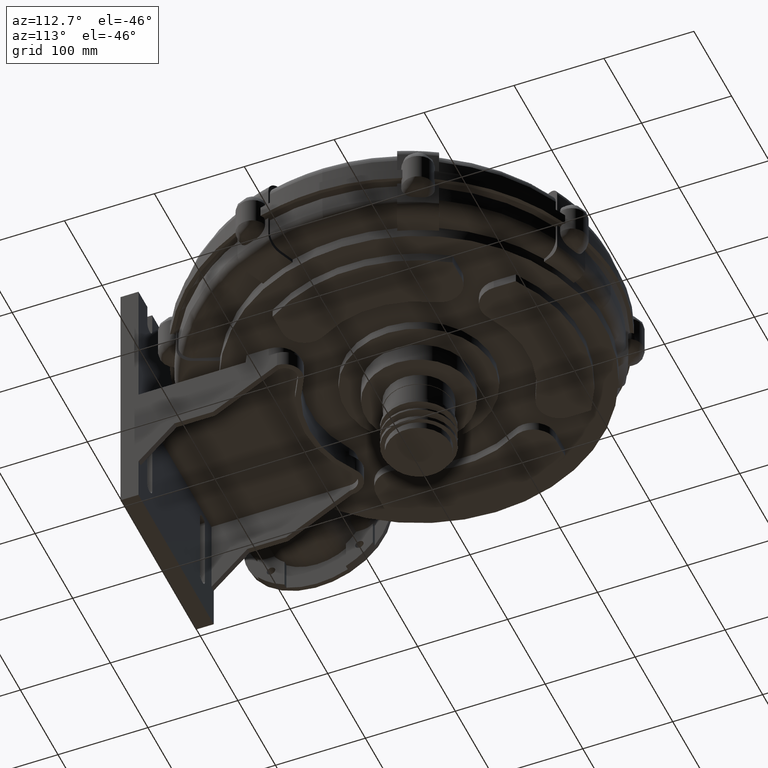
[diagram: clean part render]
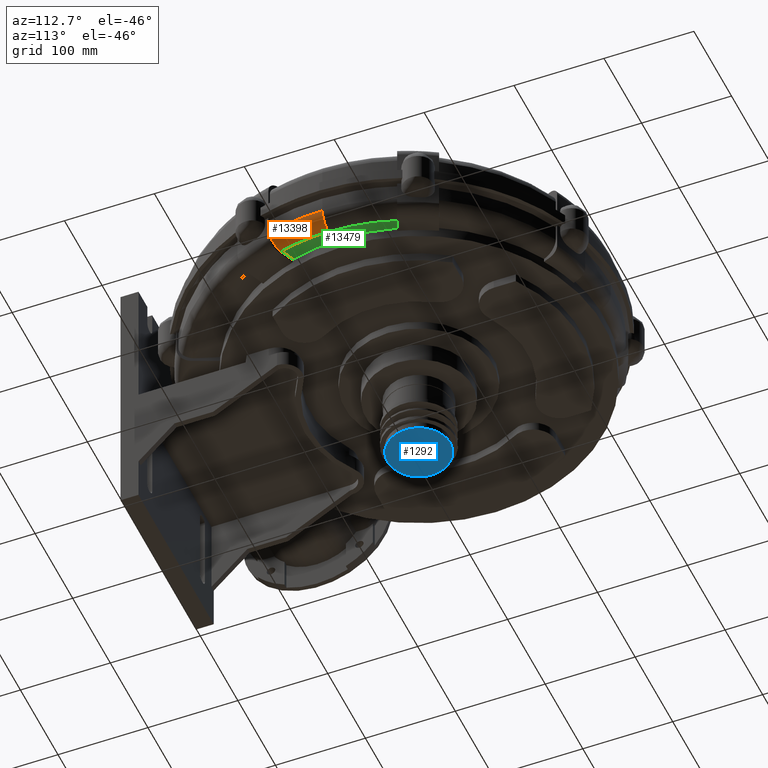
[diagram: same view with three faces highlighted in distinct colors, each labeled with its STEP entity id]
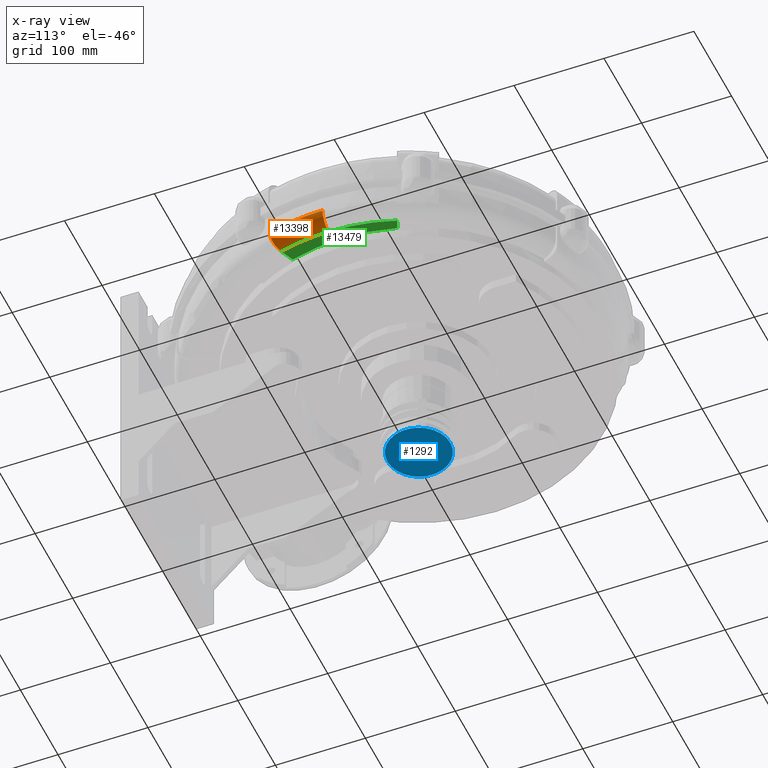
[diagram: x-ray of the same camera — body ghosted, the three highlighted faces saturated]
A machine part, auxiliary view with three faces highlighted in distinct colors.
The next image is the same camera in x-ray (body ghosted, the three faces saturated) — at least one of them is partly hidden behind the body in this view.
Their STEP definitions:

[orange] entity #13398 — the highlighted toroidal blend (fillet) surface has major radius 228 mm and minor (blend) radius 16 mm.
#12999=CARTESIAN_POINT('',(212.11902789896988,-79.591145886863643,40.499999999999432));
#13000=VERTEX_POINT('',#12999);
#13007=CARTESIAN_POINT('',(227.05029304419864,-85.775878413406048,56.499999999999417));
#13008=VERTEX_POINT('',#13007);
#13009=CARTESIAN_POINT('',(227.05029304419864,-85.775878413406076,56.499999999999417));
#13010=CARTESIAN_POINT('',(227.05029304419864,-85.775878413406076,55.515775986251569));
#13011=CARTESIAN_POINT('',(226.9600018764294,-85.738478587153566,54.440978863457019));
#13012=CARTESIAN_POINT('',(226.57093168077864,-85.577320435399855,52.336504503144603));
#13013=CARTESIAN_POINT('',(226.2721712207406,-85.453569800951271,51.30682324392636));
#13014=CARTESIAN_POINT('',(225.57131492685724,-85.163265618750216,49.485287808162468));
#13015=CARTESIAN_POINT('',(225.10389940072312,-84.969655768561722,48.526124756590647));
#13016=CARTESIAN_POINT('',(223.99215132138107,-84.509154636156012,46.736440882968601));
#13017=CARTESIAN_POINT('',(223.34785888794343,-84.242279972091751,45.905890862984506));
#13018=CARTESIAN_POINT('',(222.04791750127708,-83.70382661944447,44.506990625498553));
#13019=CARTESIAN_POINT('',(221.27171378615844,-83.382312513477984,43.810641700011473));
#13020=CARTESIAN_POINT('',(219.60118906435756,-82.690358517428507,42.610350031243421));
#13021=CARTESIAN_POINT('',(218.70689821268047,-82.319931117957665,42.106358119296658));
#13022=CARTESIAN_POINT('',(217.00158551015835,-81.613567468485897,41.346233446043101));
#13023=CARTESIAN_POINT('',(216.03291579018401,-81.212331333012372,41.021091824895421));
#13024=CARTESIAN_POINT('',(214.05406103166041,-80.392662854065378,40.597991566215192));
#13025=CARTESIAN_POINT('',(213.04388200267852,-79.974232999836175,40.499999999999432));
#13026=CARTESIAN_POINT('',(212.11902789896988,-79.591145886863657,40.499999999999432));
#13027=B_SPLINE_CURVE_WITH_KNOTS('',3,(#13009,#13010,#13011,#13012,#13013,#13014,#13015,#13016,#13017,#13018,#13019,#13020,#13021,#13022,#13023,#13024,#13025,#13026),.UNSPECIFIED.,.F.,.U.,(4,2,2,2,2,2,2,2,4),(0.0,0.295267204124357,0.590534408248714,0.887223339827045,1.183912271405375,1.482457020541188,1.781001769677001,2.081318230155782,2.381634690634563),.UNSPECIFIED.);
#13028=EDGE_CURVE('',#13008,#13000,#13027,.T.);
#13322=CARTESIAN_POINT('',(234.9999999999996,-23.999999999999964,56.499999999999382));
#13323=VERTEX_POINT('',#13322);
#13324=CARTESIAN_POINT('',(-9.00000000000002,-23.999999999999972,56.499999999999574));
#13325=DIRECTION('',(-6.270793E-016,1.680254E-016,-1.0));
#13326=DIRECTION('',(0.965925826289068,-0.258819045102521,-6.492003E-016));
#13327=AXIS2_PLACEMENT_3D('',#13324,#13325,#13326);
#13328=CIRCLE('',#13327,244.0);
#13329=EDGE_CURVE('',#13323,#13008,#13328,.T.);
#13373=CARTESIAN_POINT('',(-9.00000000000002,-23.999999999999972,56.499999999999574));
#13374=DIRECTION('',(8.099377E-016,5.144112E-016,1.0));
#13375=DIRECTION('',(1.0,0.0,0.0));
#13376=AXIS2_PLACEMENT_3D('',#13373,#13374,#13375);
#13377=TOROIDAL_SURFACE('',#13376,227.99999999999997,16.0);
#13378=ORIENTED_EDGE('',*,*,#13028,.T.);
#13379=CARTESIAN_POINT('',(218.99999999999994,-23.999999999999972,40.499999999999396));
#13380=VERTEX_POINT('',#13379);
#13381=CARTESIAN_POINT('',(-9.000000000000034,-23.999999999999982,40.499999999999581));
#13382=DIRECTION('',(6.270793E-016,-1.680254E-016,1.0));
#13383=DIRECTION('',(0.965925826289068,-0.258819045102521,-6.492003E-016));
#13384=AXIS2_PLACEMENT_3D('',#13381,#13382,#13383);
#13385=CIRCLE('',#13384,227.99999999999997);
#13386=EDGE_CURVE('',#13000,#13380,#13385,.T.);
#13387=ORIENTED_EDGE('',*,*,#13386,.T.);
#13388=CARTESIAN_POINT('',(218.99999999999994,-23.999999999999964,56.499999999999403));
#13389=DIRECTION('',(0.0,-1.0,0.0));
#13390=DIRECTION('',(0.0,0.0,-1.0));
#13391=AXIS2_PLACEMENT_3D('',#13388,#13389,#13390);
#13392=CIRCLE('',#13391,16.0);
#13393=EDGE_CURVE('',#13380,#13323,#13392,.T.);
#13394=ORIENTED_EDGE('',*,*,#13393,.T.);
#13395=ORIENTED_EDGE('',*,*,#13329,.T.);
#13396=EDGE_LOOP('',(#13378,#13387,#13394,#13395));
#13397=FACE_OUTER_BOUND('',#13396,.T.);
#13398=ADVANCED_FACE('',(#13397),#13377,.T.);

[blue] entity #1292 — the highlighted planar face has unit normal (0, 0, -1).
#1269=CARTESIAN_POINT('',(-7.438494E-014,19.999999999999972,-79.500000000000099));
#1270=VERTEX_POINT('',#1269);
#1271=CARTESIAN_POINT('',(-6.106227E-014,-15.000000000000032,-79.500000000000057));
#1272=DIRECTION('',(0.0,0.0,-1.0));
#1273=DIRECTION('',(0.0,1.0,0.0));
#1274=AXIS2_PLACEMENT_3D('',#1271,#1272,#1273);
#1275=CIRCLE('',#1274,35.000000000000007);
#1276=EDGE_CURVE('',#1270,#1270,#1275,.T.);
#1284=CARTESIAN_POINT('',(-6.772360E-014,2.499999999999973,-79.500000000000099));
#1285=DIRECTION('',(0.0,0.0,-1.0));
#1286=DIRECTION('',(-1.0,0.0,0.0));
#1287=AXIS2_PLACEMENT_3D('',#1284,#1285,#1286);
#1288=PLANE('',#1287);
#1289=ORIENTED_EDGE('',*,*,#1276,.T.);
#1290=EDGE_LOOP('',(#1289));
#1291=FACE_OUTER_BOUND('',#1290,.T.);
#1292=ADVANCED_FACE('',(#1291),#1288,.T.);

[green] entity #13479 — the highlighted planar face has unit normal (0, 0, 1).
#10009=CARTESIAN_POINT('',(196.57849996582726,43.154048450518374,40.499999999999375));
#10010=VERTEX_POINT('',#10009);
#10017=CARTESIAN_POINT('',(196.57849996582735,-73.154048450518104,40.499999999999439));
#10018=VERTEX_POINT('',#10017);
#10019=CARTESIAN_POINT('',(-3.219647E-014,-14.99999999999998,40.499999999999574));
#10020=DIRECTION('',(0.0,0.0,1.0));
#10021=DIRECTION('',(-1.0,0.0,0.0));
#10022=AXIS2_PLACEMENT_3D('',#10019,#10020,#10021);
#10023=CIRCLE('',#10022,205.0);
#10024=EDGE_CURVE('',#10018,#10010,#10023,.T.);
#12312=CARTESIAN_POINT('',(206.53356172644126,47.277570046026483,40.499999999999368));
#12313=VERTEX_POINT('',#12312);
#12335=CARTESIAN_POINT('',(196.57849996582729,43.154048450518374,40.499999999999375));
#12336=DIRECTION('',(0.923879532511286,0.382683432365092,-1.318838E-015));
#12337=VECTOR('',#12336,10.77528120311767);
#12338=LINE('',#12335,#12337);
#12339=EDGE_CURVE('',#10010,#12313,#12338,.T.);
#12999=CARTESIAN_POINT('',(212.11902789896988,-79.591145886863643,40.499999999999432));
#13000=VERTEX_POINT('',#12999);
#13001=CARTESIAN_POINT('',(212.11902789896988,-79.591145886863643,40.499999999999432));
#13002=DIRECTION('',(-0.923879532511287,0.382683432365088,4.224154E-016));
#13003=VECTOR('',#13002,16.8209462232596);
#13004=LINE('',#13001,#13003);
#13005=EDGE_CURVE('',#13000,#10018,#13004,.T.);
#13379=CARTESIAN_POINT('',(218.99999999999994,-23.999999999999972,40.499999999999396));
#13380=VERTEX_POINT('',#13379);
#13381=CARTESIAN_POINT('',(-9.000000000000034,-23.999999999999982,40.499999999999581));
#13382=DIRECTION('',(6.270793E-016,-1.680254E-016,1.0));
#13383=DIRECTION('',(0.965925826289068,-0.258819045102521,-6.492003E-016));
#13384=AXIS2_PLACEMENT_3D('',#13381,#13382,#13383);
#13385=CIRCLE('',#13384,227.99999999999997);
#13386=EDGE_CURVE('',#13000,#13380,#13385,.T.);
#13461=CARTESIAN_POINT('',(17.400366669890541,-10.737574877857657,40.499999999999552));
#13462=DIRECTION('',(0.0,0.0,1.0));
#13463=DIRECTION('',(1.0,0.0,0.0));
#13464=AXIS2_PLACEMENT_3D('',#13461,#13462,#13463);
#13465=PLANE('',#13464);
#13466=ORIENTED_EDGE('',*,*,#12339,.T.);
#13467=CARTESIAN_POINT('',(8.999999999999966,-23.999999999999982,40.499999999999559));
#13468=DIRECTION('',(6.621744E-016,6.621744E-016,1.0));
#13469=DIRECTION('',(0.707106781186547,0.707106781186548,-9.364561E-016));
#13470=AXIS2_PLACEMENT_3D('',#13467,#13468,#13469);
#13471=CIRCLE('',#13470,209.99999999999997);
#13472=EDGE_CURVE('',#13380,#12313,#13471,.T.);
#13473=ORIENTED_EDGE('',*,*,#13472,.F.);
#13474=ORIENTED_EDGE('',*,*,#13386,.F.);
#13475=ORIENTED_EDGE('',*,*,#13005,.T.);
#13476=ORIENTED_EDGE('',*,*,#10024,.T.);
#13477=EDGE_LOOP('',(#13466,#13473,#13474,#13475,#13476));
#13478=FACE_OUTER_BOUND('',#13477,.T.);
#13479=ADVANCED_FACE('',(#13478),#13465,.F.);